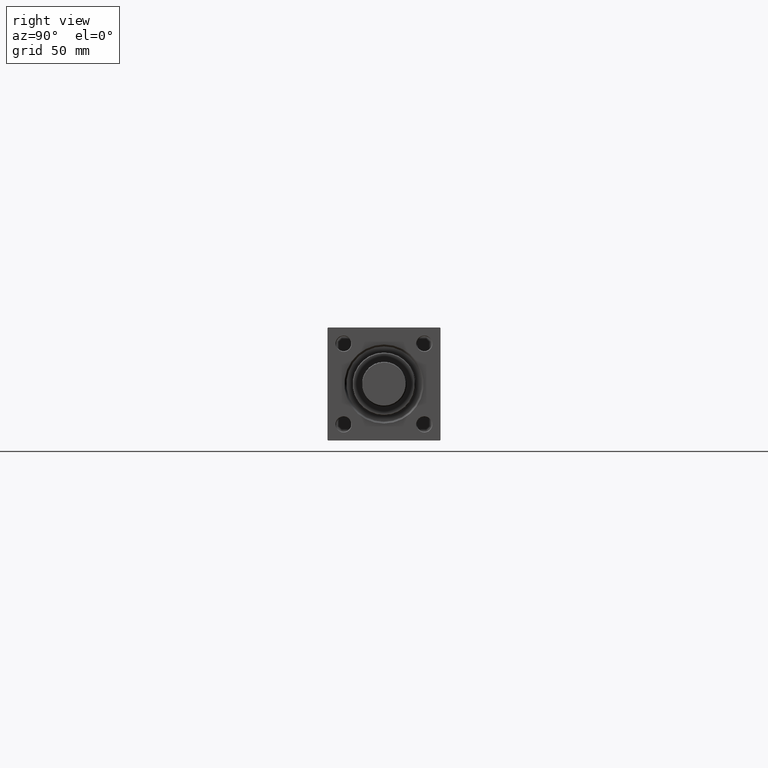
[diagram: clean part render]
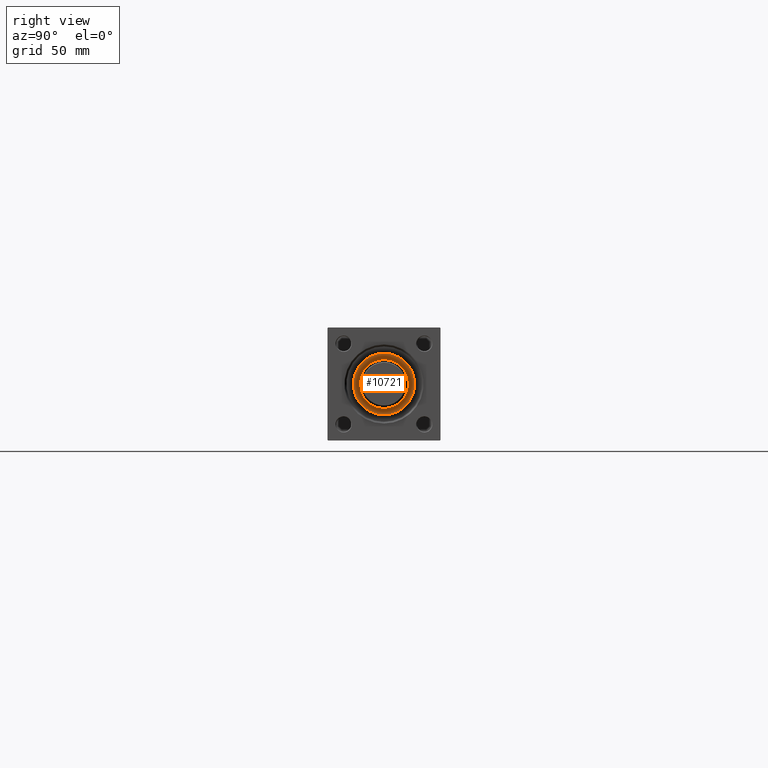
[diagram: same view with one face highlighted and labeled with its STEP entity id]
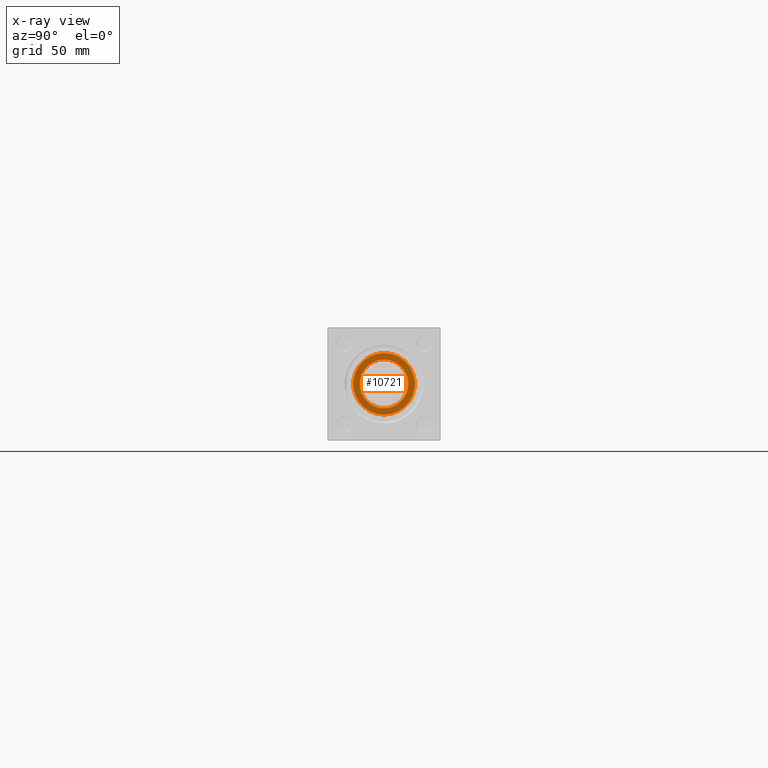
[diagram: x-ray of the same camera — body ghosted, the highlighted face saturated]
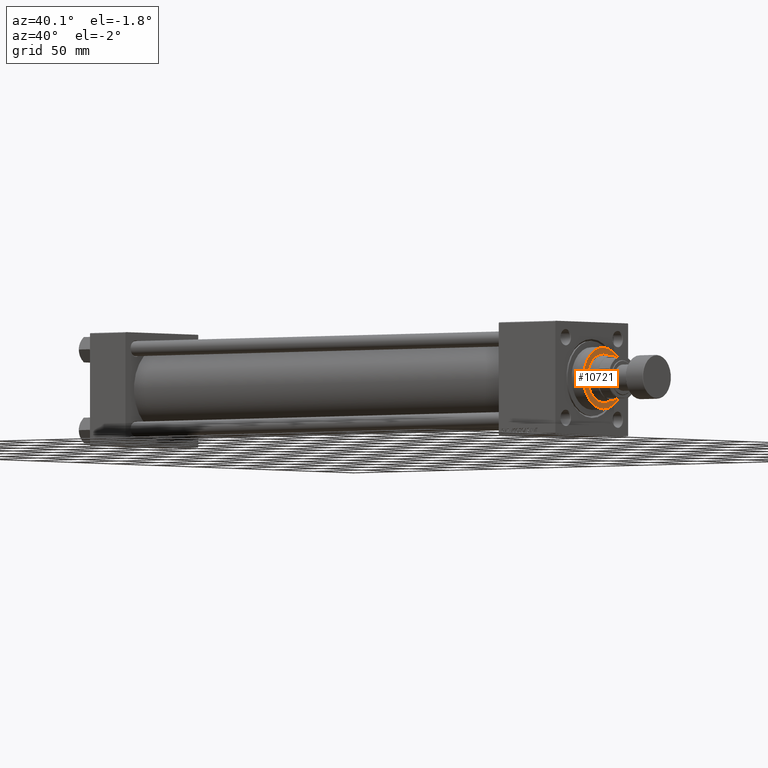
[diagram: same view with one face highlighted and labeled with its STEP entity id]
A machine part, right view. The second image highlights one B-rep face of the part: STEP entity #10721.
The next image is the same camera in x-ray: the body ghosted, the highlighted face saturated — about 0% of this face is hidden behind the body in this view.
A second angle (auxiliary view) of the same face is appended — the face is thin or edge-on in the first view.
In plain terms, the highlighted planar face has unit normal (1, 0, 0).
Its self-contained STEP definition (entity closure, byte-faithful):
#1468 = CIRCLE ( 'NONE', #18645, 24.49999999999999645 ) ;
#2874 = VERTEX_POINT ( 'NONE', #23147 ) ;
#6703 = CARTESIAN_POINT ( 'NONE',  ( -19.50000000000000000, 2.388061258337338939E-15, 40.70000000000000284 ) ) ;
#8049 = ORIENTED_EDGE ( 'NONE', *, *, #30673, .F. ) ;
#9100 = EDGE_CURVE ( 'NONE', #2874, #27581, #44456, .T. ) ;
#10721 = ADVANCED_FACE ( 'NONE', ( #34664, #19299 ), #34922, .T. ) ;
#14499 = EDGE_CURVE ( 'NONE', #44519, #29427, #35619, .T. ) ;
#15039 = CARTESIAN_POINT ( 'NONE',  ( -24.49999999999999645, 0.000000000000000000, 40.70000000000000284 ) ) ;
#15455 = CARTESIAN_POINT ( 'NONE',  ( 0.000000000000000000, 0.000000000000000000, 40.70000000000000284 ) ) ;
#18645 = AXIS2_PLACEMENT_3D ( 'NONE', #22600, #50014, #38225 ) ;
#19299 = FACE_OUTER_BOUND ( 'NONE', #29196, .T. ) ;
#20883 = DIRECTION ( 'NONE',  ( 1.000000000000000000, 0.000000000000000000, 0.000000000000000000 ) ) ;
#22600 = CARTESIAN_POINT ( 'NONE',  ( 0.000000000000000000, 0.000000000000000000, 40.70000000000000284 ) ) ;
#23045 = CARTESIAN_POINT ( 'NONE',  ( 19.50000000000000000, 0.000000000000000000, 40.70000000000000284 ) ) ;
#23147 = CARTESIAN_POINT ( 'NONE',  ( 24.49999999999999645, 3.031000827889698861E-15, 40.70000000000000284 ) ) ;
#27221 = DIRECTION ( 'NONE',  ( 1.000000000000000000, 0.000000000000000000, -0.000000000000000000 ) ) ;
#27581 = VERTEX_POINT ( 'NONE', #15039 ) ;
#29196 = EDGE_LOOP ( 'NONE', ( #38994, #47927 ) ) ;
#29303 = DIRECTION ( 'NONE',  ( 0.000000000000000000, 0.000000000000000000, 1.000000000000000000 ) ) ;
#29427 = VERTEX_POINT ( 'NONE', #23045 ) ;
#30673 = EDGE_CURVE ( 'NONE', #29427, #44519, #38133, .T. ) ;
#31079 = DIRECTION ( 'NONE',  ( 0.000000000000000000, 0.000000000000000000, 1.000000000000000000 ) ) ;
#31152 = CARTESIAN_POINT ( 'NONE',  ( 0.000000000000000000, 0.000000000000000000, 40.70000000000000284 ) ) ;
#33275 = EDGE_CURVE ( 'NONE', #27581, #2874, #1468, .T. ) ;
#34664 = FACE_BOUND ( 'NONE', #44286, .T. ) ;
#34922 = PLANE ( 'NONE',  #37979 ) ;
#35251 = DIRECTION ( 'NONE',  ( 1.000000000000000000, 0.000000000000000000, 0.000000000000000000 ) ) ;
#35619 = CIRCLE ( 'NONE', #36434, 19.50000000000000000 ) ;
#36239 = CARTESIAN_POINT ( 'NONE',  ( 0.000000000000000000, 0.000000000000000000, 40.70000000000000284 ) ) ;
#36434 = AXIS2_PLACEMENT_3D ( 'NONE', #36239, #29303, #40848 ) ;
#37979 = AXIS2_PLACEMENT_3D ( 'NONE', #15455, #31079, #27221 ) ;
#38133 = CIRCLE ( 'NONE', #42236, 19.50000000000000000 ) ;
#38225 = DIRECTION ( 'NONE',  ( 1.000000000000000000, 0.000000000000000000, 0.000000000000000000 ) ) ;
#38994 = ORIENTED_EDGE ( 'NONE', *, *, #33275, .T. ) ;
#39584 = DIRECTION ( 'NONE',  ( 0.000000000000000000, 0.000000000000000000, 1.000000000000000000 ) ) ;
#40848 = DIRECTION ( 'NONE',  ( 1.000000000000000000, 0.000000000000000000, 0.000000000000000000 ) ) ;
#42236 = AXIS2_PLACEMENT_3D ( 'NONE', #47538, #48556, #20883 ) ;
#42794 = AXIS2_PLACEMENT_3D ( 'NONE', #31152, #39584, #35251 ) ;
#44286 = EDGE_LOOP ( 'NONE', ( #8049, #50199 ) ) ;
#44456 = CIRCLE ( 'NONE', #42794, 24.49999999999999645 ) ;
#44519 = VERTEX_POINT ( 'NONE', #6703 ) ;
#47538 = CARTESIAN_POINT ( 'NONE',  ( 0.000000000000000000, 0.000000000000000000, 40.70000000000000284 ) ) ;
#47927 = ORIENTED_EDGE ( 'NONE', *, *, #9100, .T. ) ;
#48556 = DIRECTION ( 'NONE',  ( 0.000000000000000000, 0.000000000000000000, 1.000000000000000000 ) ) ;
#50014 = DIRECTION ( 'NONE',  ( 0.000000000000000000, 0.000000000000000000, 1.000000000000000000 ) ) ;
#50199 = ORIENTED_EDGE ( 'NONE', *, *, #14499, .F. ) ;